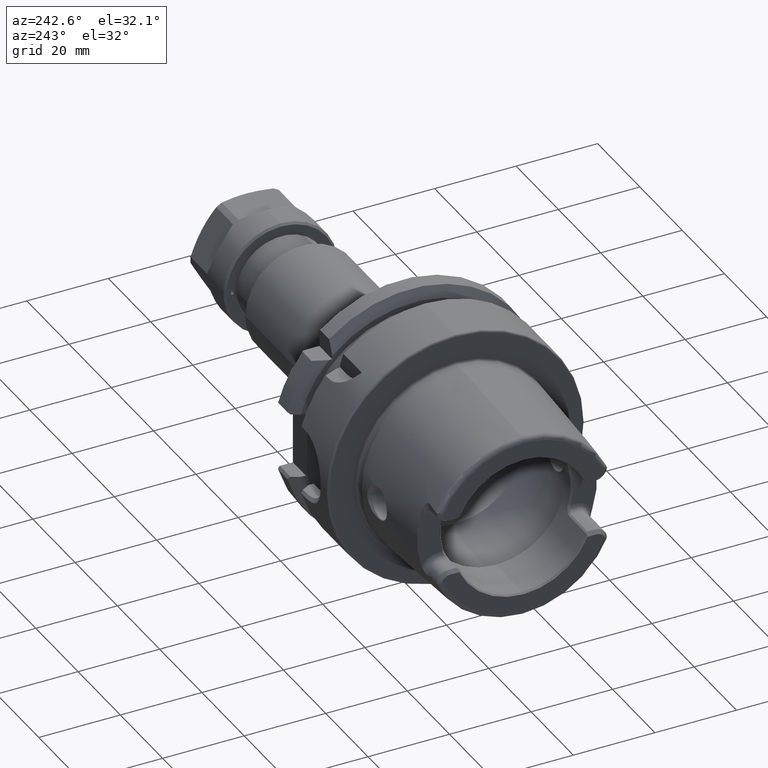
[diagram: clean part render]
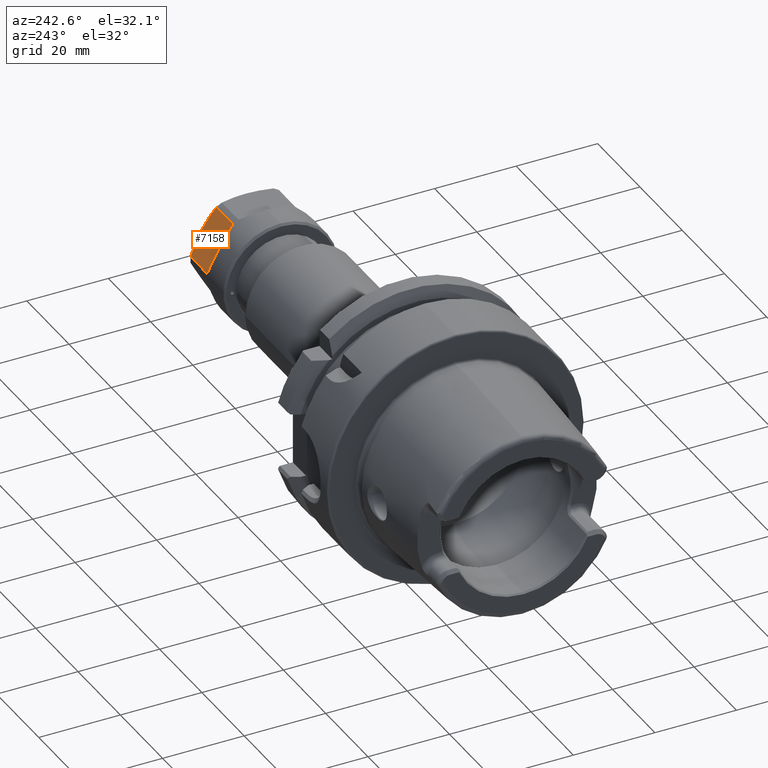
[diagram: same view with one face highlighted and labeled with its STEP entity id]
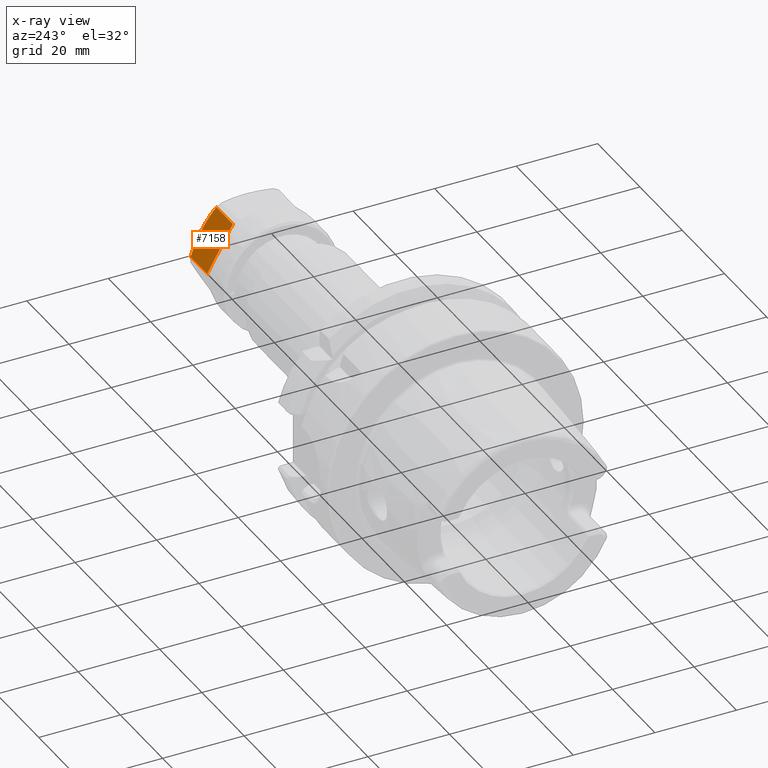
[diagram: x-ray of the same camera — body ghosted, the highlighted face saturated]
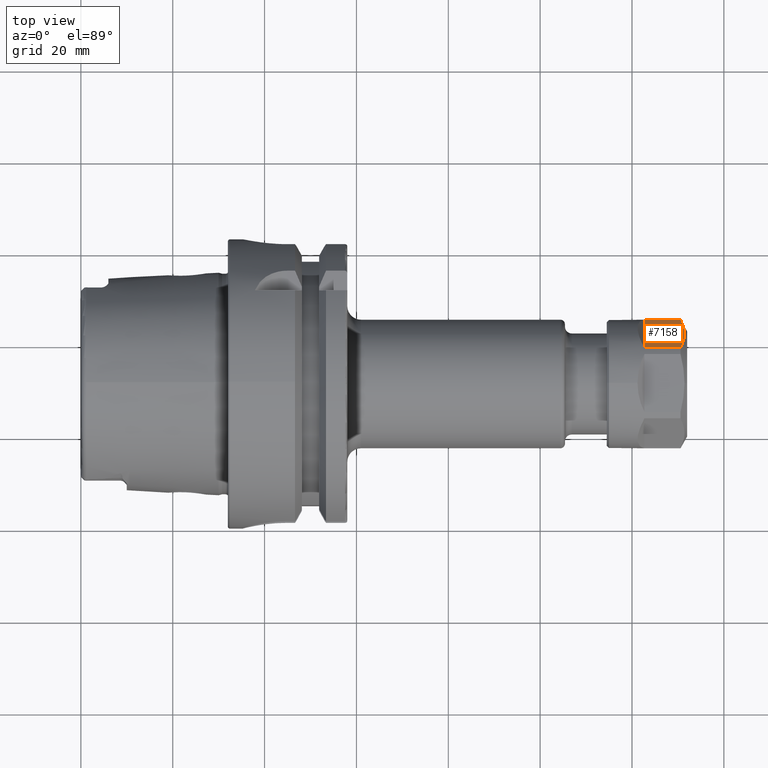
[diagram: same view with one face highlighted and labeled with its STEP entity id]
A machine part, auxiliary view. The second image highlights one B-rep face of the part: STEP entity #7158.
The next image is the same camera in x-ray: the body ghosted, the highlighted face saturated — about 0% of this face is hidden behind the body in this view.
A second angle (top view) of the same face is appended — the face is thin or edge-on in the first view.
In plain terms, the highlighted planar face has unit normal (0, -0.866, -0.5).
Its self-contained STEP definition (entity closure, byte-faithful):
#6267=DIRECTION('',(1.E0,0.E0,0.E0));
#6268=VECTOR('',#6267,7.856624327026E0);
#6269=CARTESIAN_POINT('',(-5.5E-1,1.397769760054E1,7.899175830396E-1));
#6270=LINE('',#6269,#6268);
#6271=CARTESIAN_POINT('',(-5.5E-1,1.397769760054E1,7.899175830396E-1));
#6277=CARTESIAN_POINT('',(-5.5E-1,7.672937494076E0,1.171008241696E1));
#6279=DIRECTION('',(1.E0,0.E0,0.E0));
#6280=VECTOR('',#6279,7.856624327026E0);
#6281=CARTESIAN_POINT('',(-5.5E-1,7.672937494076E0,1.171008241696E1));
#6282=LINE('',#6281,#6280);
#6386=CARTESIAN_POINT('',(7.306624327026E0,7.672937494076E0,1.171008241696E1));
#6387=CARTESIAN_POINT('',(7.448327490667E0,7.945439464670E0,1.123809515873E1));
#6388=CARTESIAN_POINT('',(7.698929044729E0,8.484182768692E0,1.030496438393E1));
#6389=CARTESIAN_POINT('',(7.968957761429E0,9.267505131111E0,8.948210253510E0));
#6390=CARTESIAN_POINT('',(8.135196523352E0,1.004671083942E1,7.598586377174E0));
#6391=CARTESIAN_POINT('',(8.191392261795E0,1.082556616248E1,6.249569385887E0));
#6392=CARTESIAN_POINT('',(8.135132782403E0,1.160436981081E1,4.900641897854E0));
#6393=CARTESIAN_POINT('',(7.968822890541E0,1.238358049470E1,3.551009403566E0));
#6394=CARTESIAN_POINT('',(7.698876489694E0,1.316655162841E1,2.194863619110E0));
#6395=CARTESIAN_POINT('',(7.448312456095E0,1.370522454214E1,1.261854763869E0));
#6396=CARTESIAN_POINT('',(7.306624327026E0,1.397769760054E1,7.899175830396E-1));
#6430=DIRECTION('',(0.E0,5.E-1,-8.660254037844E-1));
#6431=VECTOR('',#6430,1.260952021292E1);
#6432=CARTESIAN_POINT('',(-5.5E-1,7.672937494076E0,1.171008241696E1));
#6433=LINE('',#6432,#6431);
#6473=VERTEX_POINT('',#6386);
#6474=VERTEX_POINT('',#6396);
#6484=VERTEX_POINT('',#6271);
#6485=VERTEX_POINT('',#6277);
#7146=CARTESIAN_POINT('',(8.75E0,5.825317547305E0,1.491025403784E1));
#7147=DIRECTION('',(0.E0,-8.660254037844E-1,-5.E-1));
#7148=DIRECTION('',(0.E0,5.E-1,-8.660254037844E-1));
#7149=AXIS2_PLACEMENT_3D('',#7146,#7147,#7148);
#7150=PLANE('',#7149);
#7152=ORIENTED_EDGE('',*,*,#7151,.T.);
#7153=ORIENTED_EDGE('',*,*,#7024,.T.);
#7154=ORIENTED_EDGE('',*,*,#7131,.F.);
#7155=ORIENTED_EDGE('',*,*,#7028,.F.);
#7156=EDGE_LOOP('',(#7152,#7153,#7154,#7155));
#7157=FACE_OUTER_BOUND('',#7156,.F.);
#7158=ADVANCED_FACE('',(#7157),#7150,.F.);
#6397=B_SPLINE_CURVE_WITH_KNOTS('',3,(#6386,#6387,#6388,#6389,#6390,#6391,#6392,
#6393,#6394,#6395,#6396),.UNSPECIFIED.,.F.,.F.,(4,1,1,1,1,1,1,1,4),(0.E0,
1.25E-1,2.5E-1,3.75E-1,5.E-1,6.25E-1,7.5E-1,8.75E-1,1.E0),.UNSPECIFIED.);
#7024=EDGE_CURVE('',#6484,#6474,#6270,.T.);
#7028=EDGE_CURVE('',#6485,#6473,#6282,.T.);
#7131=EDGE_CURVE('',#6473,#6474,#6397,.T.);
#7151=EDGE_CURVE('',#6485,#6484,#6433,.T.);